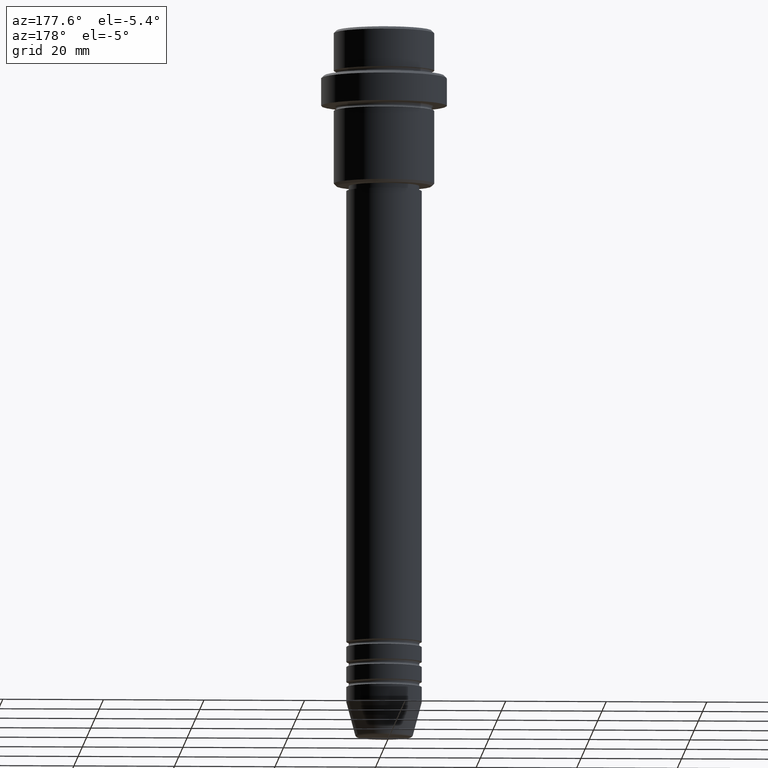
[diagram: clean part render]
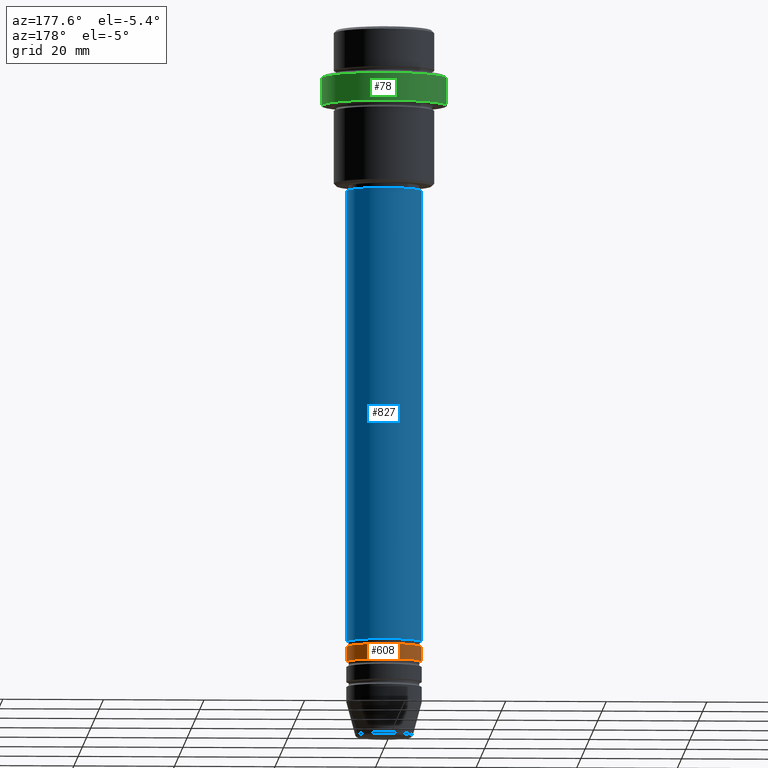
[diagram: same view with three faces highlighted in distinct colors, each labeled with its STEP entity id]
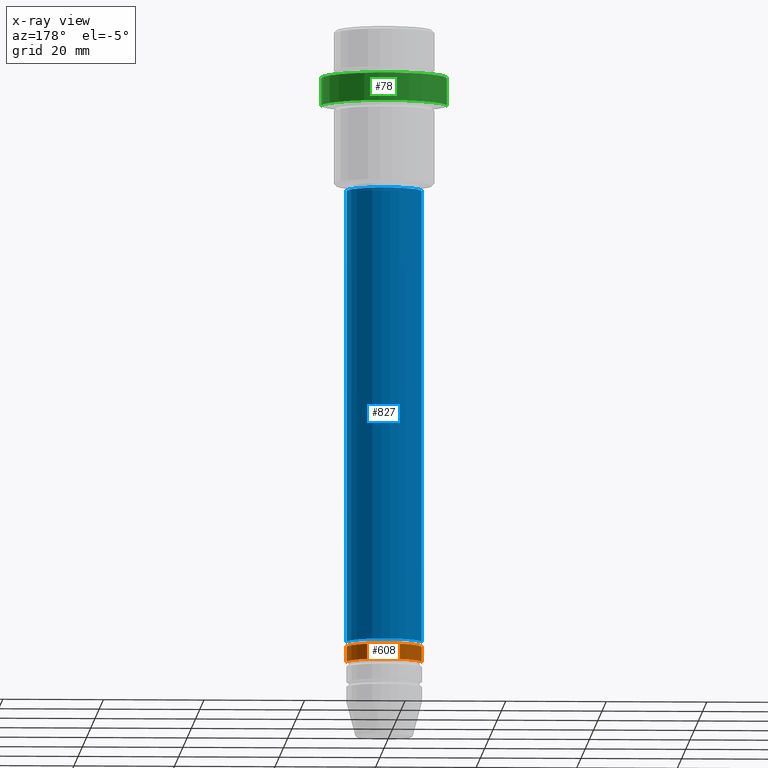
[diagram: x-ray of the same camera — body ghosted, the three highlighted faces saturated]
A machine part, auxiliary view with three faces highlighted in distinct colors.
The next image is the same camera in x-ray (body ghosted, the three faces saturated) — at least one of them is partly hidden behind the body in this view.
Their STEP definitions:

[orange] entity #608 — the highlighted cylindrical surface (partial cylindrical patch) has radius 7.5 mm, axis along (-0, -0, 1).
#1 = CARTESIAN_POINT ( 'NONE',  ( 0.000000000000000000, 0.000000000000000000, 0.000000000000000000 ) ) ;
#19 = CARTESIAN_POINT ( 'NONE',  ( 7.500000000000000000, 0.000000000000000000, -122.9999999999999005 ) ) ;
#26 = CARTESIAN_POINT ( 'NONE',  ( 7.500000000000000000, 0.000000000000000000, -125.9999999999998863 ) ) ;
#77 = DIRECTION ( 'NONE',  ( -0.000000000000000000, -0.000000000000000000, 1.000000000000000000 ) ) ;
#144 = ORIENTED_EDGE ( 'NONE', *, *, #1255, .T. ) ;
#160 = CIRCLE ( 'NONE', #341, 7.500000000000000000 ) ;
#182 = CARTESIAN_POINT ( 'NONE',  ( 7.500000000000000000, 0.000000000000000000, 0.000000000000000000 ) ) ;
#293 = VECTOR ( 'NONE', #77, 1000.000000000000000 ) ;
#308 = ORIENTED_EDGE ( 'NONE', *, *, #896, .F. ) ;
#325 = DIRECTION ( 'NONE',  ( 1.000000000000000000, 0.000000000000000000, 0.000000000000000000 ) ) ;
#329 = ORIENTED_EDGE ( 'NONE', *, *, #1051, .F. ) ;
#341 = AXIS2_PLACEMENT_3D ( 'NONE', #1168, #617, #711 ) ;
#433 = CYLINDRICAL_SURFACE ( 'NONE', #813, 7.500000000000000000 ) ;
#454 = DIRECTION ( 'NONE',  ( -0.000000000000000000, -0.000000000000000000, 1.000000000000000000 ) ) ;
#513 = VERTEX_POINT ( 'NONE', #1395 ) ;
#541 = FACE_OUTER_BOUND ( 'NONE', #1335, .T. ) ;
#608 = ADVANCED_FACE ( 'NONE', ( #541 ), #433, .T. ) ;
#615 = AXIS2_PLACEMENT_3D ( 'NONE', #1124, #801, #681 ) ;
#617 = DIRECTION ( 'NONE',  ( -0.000000000000000000, -0.000000000000000000, 1.000000000000000000 ) ) ;
#646 = VERTEX_POINT ( 'NONE', #19 ) ;
#660 = VERTEX_POINT ( 'NONE', #26 ) ;
#681 = DIRECTION ( 'NONE',  ( 1.000000000000000000, 0.000000000000000000, 0.000000000000000000 ) ) ;
#711 = DIRECTION ( 'NONE',  ( 1.000000000000000000, 0.000000000000000000, 0.000000000000000000 ) ) ;
#801 = DIRECTION ( 'NONE',  ( -0.000000000000000000, -0.000000000000000000, 1.000000000000000000 ) ) ;
#813 = AXIS2_PLACEMENT_3D ( 'NONE', #1, #454, #325 ) ;
#896 = EDGE_CURVE ( 'NONE', #646, #944, #160, .T. ) ;
#944 = VERTEX_POINT ( 'NONE', #947 ) ;
#947 = CARTESIAN_POINT ( 'NONE',  ( -7.500000000000000000, 9.184850993605147944E-16, -122.9999999999999005 ) ) ;
#957 = CIRCLE ( 'NONE', #615, 7.500000000000000000 ) ;
#958 = LINE ( 'NONE', #1393, #1235 ) ;
#1006 = EDGE_CURVE ( 'NONE', #513, #944, #958, .T. ) ;
#1040 = DIRECTION ( 'NONE',  ( -0.000000000000000000, -0.000000000000000000, 1.000000000000000000 ) ) ;
#1051 = EDGE_CURVE ( 'NONE', #660, #646, #1157, .T. ) ;
#1124 = CARTESIAN_POINT ( 'NONE',  ( 0.000000000000000000, 0.000000000000000000, -125.9999999999998863 ) ) ;
#1157 = LINE ( 'NONE', #182, #293 ) ;
#1168 = CARTESIAN_POINT ( 'NONE',  ( 0.000000000000000000, 0.000000000000000000, -122.9999999999999005 ) ) ;
#1235 = VECTOR ( 'NONE', #1040, 1000.000000000000000 ) ;
#1255 = EDGE_CURVE ( 'NONE', #660, #513, #957, .T. ) ;
#1335 = EDGE_LOOP ( 'NONE', ( #144, #1392, #308, #329 ) ) ;
#1392 = ORIENTED_EDGE ( 'NONE', *, *, #1006, .T. ) ;
#1393 = CARTESIAN_POINT ( 'NONE',  ( -7.500000000000000000, 9.184850993605147944E-16, 0.000000000000000000 ) ) ;
#1395 = CARTESIAN_POINT ( 'NONE',  ( -7.500000000000000000, 9.184850993605147944E-16, -125.9999999999998863 ) ) ;

[blue] entity #827 — the highlighted cylindrical surface (partial cylindrical patch) has radius 7.5 mm, axis along (-0, -0, 1).
#10 = EDGE_CURVE ( 'NONE', #835, #163, #854, .T. ) ;
#12 = CARTESIAN_POINT ( 'NONE',  ( -7.500000000000000000, 9.184850993605147944E-16, -121.9999999999999005 ) ) ;
#63 = CARTESIAN_POINT ( 'NONE',  ( 0.000000000000000000, 0.000000000000000000, -32.00000000000000000 ) ) ;
#161 = DIRECTION ( 'NONE',  ( -0.000000000000000000, -0.000000000000000000, 1.000000000000000000 ) ) ;
#163 = VERTEX_POINT ( 'NONE', #450 ) ;
#167 = AXIS2_PLACEMENT_3D ( 'NONE', #63, #498, #1400 ) ;
#245 = CARTESIAN_POINT ( 'NONE',  ( -7.500000000000000000, 9.184850993605147944E-16, 0.000000000000000000 ) ) ;
#322 = EDGE_CURVE ( 'NONE', #583, #424, #808, .T. ) ;
#338 = VECTOR ( 'NONE', #1239, 1000.000000000000000 ) ;
#354 = EDGE_CURVE ( 'NONE', #835, #583, #722, .T. ) ;
#369 = EDGE_LOOP ( 'NONE', ( #960, #530, #1085, #696 ) ) ;
#370 = DIRECTION ( 'NONE',  ( 1.000000000000000000, 0.000000000000000000, 0.000000000000000000 ) ) ;
#424 = VERTEX_POINT ( 'NONE', #825 ) ;
#450 = CARTESIAN_POINT ( 'NONE',  ( 7.500000000000000000, 0.000000000000000000, -32.00000000000000000 ) ) ;
#455 = AXIS2_PLACEMENT_3D ( 'NONE', #496, #789, #370 ) ;
#485 = FACE_OUTER_BOUND ( 'NONE', #369, .T. ) ;
#488 = CIRCLE ( 'NONE', #167, 7.500000000000000000 ) ;
#496 = CARTESIAN_POINT ( 'NONE',  ( 0.000000000000000000, 0.000000000000000000, -121.9999999999999005 ) ) ;
#498 = DIRECTION ( 'NONE',  ( -0.000000000000000000, -0.000000000000000000, 1.000000000000000000 ) ) ;
#530 = ORIENTED_EDGE ( 'NONE', *, *, #322, .T. ) ;
#583 = VERTEX_POINT ( 'NONE', #12 ) ;
#598 = DIRECTION ( 'NONE',  ( 1.000000000000000000, 0.000000000000000000, 0.000000000000000000 ) ) ;
#696 = ORIENTED_EDGE ( 'NONE', *, *, #10, .F. ) ;
#722 = CIRCLE ( 'NONE', #455, 7.500000000000000000 ) ;
#789 = DIRECTION ( 'NONE',  ( -0.000000000000000000, -0.000000000000000000, 1.000000000000000000 ) ) ;
#808 = LINE ( 'NONE', #245, #338 ) ;
#810 = CARTESIAN_POINT ( 'NONE',  ( 7.500000000000000000, 0.000000000000000000, -121.9999999999999005 ) ) ;
#825 = CARTESIAN_POINT ( 'NONE',  ( -7.500000000000000000, 9.184850993605147944E-16, -32.00000000000000000 ) ) ;
#827 = ADVANCED_FACE ( 'NONE', ( #485 ), #913, .T. ) ;
#835 = VERTEX_POINT ( 'NONE', #810 ) ;
#854 = LINE ( 'NONE', #1389, #1322 ) ;
#892 = CARTESIAN_POINT ( 'NONE',  ( 0.000000000000000000, 0.000000000000000000, 0.000000000000000000 ) ) ;
#913 = CYLINDRICAL_SURFACE ( 'NONE', #926, 7.500000000000000000 ) ;
#926 = AXIS2_PLACEMENT_3D ( 'NONE', #892, #161, #598 ) ;
#960 = ORIENTED_EDGE ( 'NONE', *, *, #354, .T. ) ;
#1085 = ORIENTED_EDGE ( 'NONE', *, *, #1417, .F. ) ;
#1239 = DIRECTION ( 'NONE',  ( -0.000000000000000000, -0.000000000000000000, 1.000000000000000000 ) ) ;
#1277 = DIRECTION ( 'NONE',  ( -0.000000000000000000, -0.000000000000000000, 1.000000000000000000 ) ) ;
#1322 = VECTOR ( 'NONE', #1277, 1000.000000000000000 ) ;
#1389 = CARTESIAN_POINT ( 'NONE',  ( 7.500000000000000000, 0.000000000000000000, 0.000000000000000000 ) ) ;
#1400 = DIRECTION ( 'NONE',  ( 1.000000000000000000, 0.000000000000000000, 0.000000000000000000 ) ) ;
#1417 = EDGE_CURVE ( 'NONE', #163, #424, #488, .T. ) ;

[green] entity #78 — the highlighted cylindrical surface (partial cylindrical patch) has radius 12.5 mm, axis along (-0, -0, 1).
#30 = VECTOR ( 'NONE', #110, 1000.000000000000000 ) ;
#57 = EDGE_LOOP ( 'NONE', ( #567, #277, #515, #622 ) ) ;
#73 = EDGE_CURVE ( 'NONE', #1178, #106, #829, .T. ) ;
#78 = ADVANCED_FACE ( 'NONE', ( #1163 ), #1267, .T. ) ;
#106 = VERTEX_POINT ( 'NONE', #506 ) ;
#110 = DIRECTION ( 'NONE',  ( -0.000000000000000000, -0.000000000000000000, 1.000000000000000000 ) ) ;
#125 = LINE ( 'NONE', #426, #30 ) ;
#134 = DIRECTION ( 'NONE',  ( -0.000000000000000000, -0.000000000000000000, 1.000000000000000000 ) ) ;
#143 = CIRCLE ( 'NONE', #574, 12.50000000000000000 ) ;
#177 = DIRECTION ( 'NONE',  ( -0.000000000000000000, -0.000000000000000000, 1.000000000000000000 ) ) ;
#188 = CARTESIAN_POINT ( 'NONE',  ( 0.000000000000000000, 0.000000000000000000, 0.000000000000000000 ) ) ;
#277 = ORIENTED_EDGE ( 'NONE', *, *, #73, .T. ) ;
#282 = DIRECTION ( 'NONE',  ( 1.000000000000000000, 0.000000000000000000, 0.000000000000000000 ) ) ;
#318 = CARTESIAN_POINT ( 'NONE',  ( -12.50000000000000000, 1.530808498934191521E-15, 0.000000000000000000 ) ) ;
#425 = DIRECTION ( 'NONE',  ( 1.000000000000000000, 0.000000000000000000, 0.000000000000000000 ) ) ;
#426 = CARTESIAN_POINT ( 'NONE',  ( 12.50000000000000000, 0.000000000000000000, 0.000000000000000000 ) ) ;
#464 = CIRCLE ( 'NONE', #1283, 12.50000000000000000 ) ;
#482 = CARTESIAN_POINT ( 'NONE',  ( -12.50000000000000000, 1.530808498934191521E-15, -15.00000000000000000 ) ) ;
#506 = CARTESIAN_POINT ( 'NONE',  ( -12.50000000000000000, 1.530808498934191521E-15, -9.500000000000005329 ) ) ;
#515 = ORIENTED_EDGE ( 'NONE', *, *, #1155, .T. ) ;
#523 = AXIS2_PLACEMENT_3D ( 'NONE', #188, #938, #609 ) ;
#543 = VERTEX_POINT ( 'NONE', #1405 ) ;
#567 = ORIENTED_EDGE ( 'NONE', *, *, #1306, .T. ) ;
#574 = AXIS2_PLACEMENT_3D ( 'NONE', #780, #1205, #425 ) ;
#609 = DIRECTION ( 'NONE',  ( 1.000000000000000000, 0.000000000000000000, 0.000000000000000000 ) ) ;
#622 = ORIENTED_EDGE ( 'NONE', *, *, #625, .F. ) ;
#625 = EDGE_CURVE ( 'NONE', #543, #826, #125, .T. ) ;
#780 = CARTESIAN_POINT ( 'NONE',  ( 0.000000000000000000, 0.000000000000000000, -9.500000000000005329 ) ) ;
#826 = VERTEX_POINT ( 'NONE', #918 ) ;
#829 = LINE ( 'NONE', #318, #868 ) ;
#868 = VECTOR ( 'NONE', #177, 1000.000000000000000 ) ;
#918 = CARTESIAN_POINT ( 'NONE',  ( 12.50000000000000000, 0.000000000000000000, -9.500000000000005329 ) ) ;
#938 = DIRECTION ( 'NONE',  ( -0.000000000000000000, -0.000000000000000000, 1.000000000000000000 ) ) ;
#1155 = EDGE_CURVE ( 'NONE', #106, #826, #143, .T. ) ;
#1163 = FACE_OUTER_BOUND ( 'NONE', #57, .T. ) ;
#1178 = VERTEX_POINT ( 'NONE', #482 ) ;
#1205 = DIRECTION ( 'NONE',  ( 0.000000000000000000, 0.000000000000000000, -1.000000000000000000 ) ) ;
#1218 = CARTESIAN_POINT ( 'NONE',  ( 0.000000000000000000, 0.000000000000000000, -15.00000000000000000 ) ) ;
#1267 = CYLINDRICAL_SURFACE ( 'NONE', #523, 12.50000000000000000 ) ;
#1283 = AXIS2_PLACEMENT_3D ( 'NONE', #1218, #134, #282 ) ;
#1306 = EDGE_CURVE ( 'NONE', #543, #1178, #464, .T. ) ;
#1405 = CARTESIAN_POINT ( 'NONE',  ( 12.50000000000000000, 0.000000000000000000, -15.00000000000000000 ) ) ;